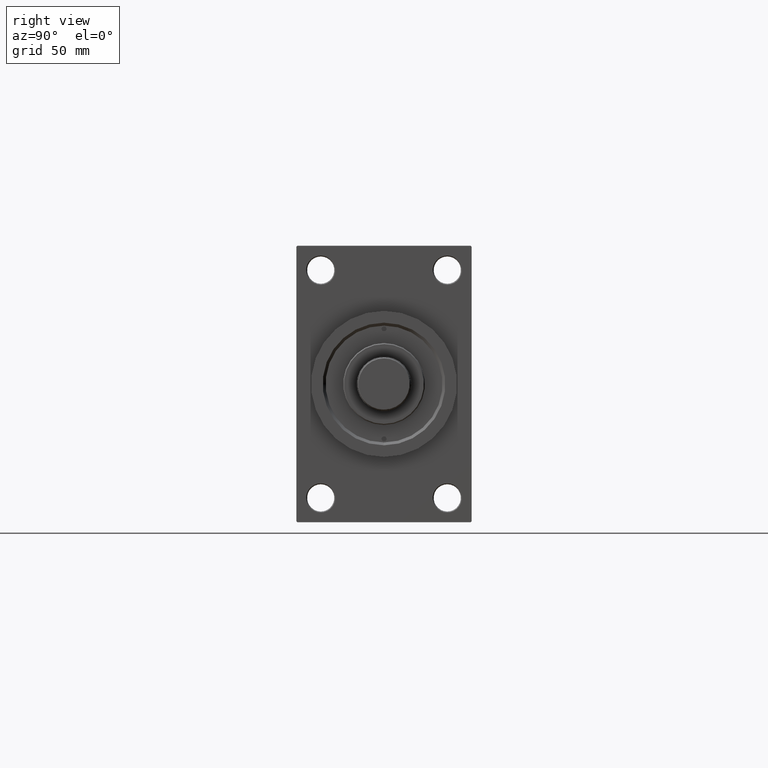
[diagram: clean part render]
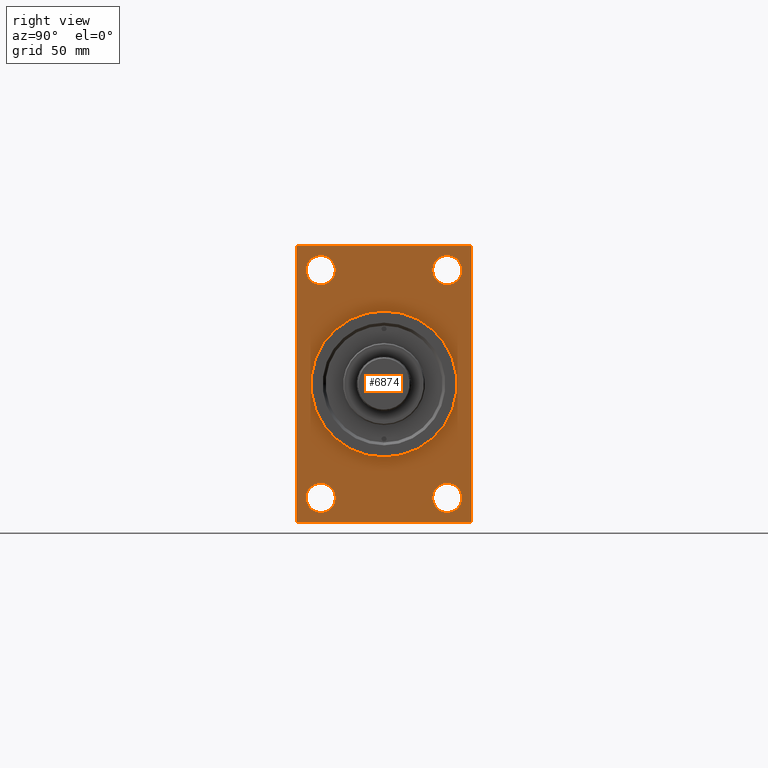
[diagram: same view with one face highlighted and labeled with its STEP entity id]
A machine part, right view. The second image highlights one B-rep face of the part: STEP entity #6874.
In plain terms, the highlighted planar face has unit normal (-1, 0, 0).
Its self-contained STEP definition (entity closure, byte-faithful):
#266 = CARTESIAN_POINT ( 'NONE',  ( 245.0000000000000000, -44.50000000000000000, -71.00000000000000000 ) ) ;
#459 = CARTESIAN_POINT ( 'NONE',  ( 245.0000000000000000, 0.000000000000000000, 0.000000000000000000 ) ) ;
#619 = CARTESIAN_POINT ( 'NONE',  ( 245.0000000000000000, 0.000000000000000000, 37.50000000000000711 ) ) ;
#1104 = EDGE_LOOP ( 'NONE', ( #45140, #35054 ) ) ;
#1163 = DIRECTION ( 'NONE',  ( 0.000000000000000000, 0.000000000000000000, -1.000000000000000000 ) ) ;
#1243 = CARTESIAN_POINT ( 'NONE',  ( 245.0000000000000000, 32.50000000000000711, -51.00000000000001421 ) ) ;
#1296 = CARTESIAN_POINT ( 'NONE',  ( 245.0000000000000000, 44.50000000000007105, 71.00000000000000000 ) ) ;
#1340 = ORIENTED_EDGE ( 'NONE', *, *, #22628, .T. ) ;
#1441 = DIRECTION ( 'NONE',  ( 0.000000000000000000, 0.000000000000000000, 1.000000000000000000 ) ) ;
#1787 = DIRECTION ( 'NONE',  ( -0.000000000000000000, 0.7071067811865376918, 0.7071067811865573427 ) ) ;
#2099 = CIRCLE ( 'NONE', #9083, 7.499999999999965361 ) ;
#2715 = DIRECTION ( 'NONE',  ( -1.000000000000000000, 0.000000000000000000, -0.000000000000000000 ) ) ;
#2858 = LINE ( 'NONE', #43998, #29267 ) ;
#2972 = ORIENTED_EDGE ( 'NONE', *, *, #38871, .T. ) ;
#3017 = EDGE_LOOP ( 'NONE', ( #37402, #18593, #14392, #2972, #21710, #21585, #1340, #8573 ) ) ;
#3870 = EDGE_CURVE ( 'NONE', #13201, #35908, #31778, .T. ) ;
#4097 = DIRECTION ( 'NONE',  ( 0.000000000000000000, 0.000000000000000000, -1.000000000000000000 ) ) ;
#4405 = CIRCLE ( 'NONE', #25247, 37.50000000000000711 ) ;
#5025 = CARTESIAN_POINT ( 'NONE',  ( 245.0000000000000000, -32.50000000000000000, 58.50000000000000711 ) ) ;
#5167 = DIRECTION ( 'NONE',  ( 0.000000000000000000, -0.7071067811865474617, 0.7071067811865474617 ) ) ;
#5372 = CIRCLE ( 'NONE', #32424, 7.499999999999965361 ) ;
#5923 = AXIS2_PLACEMENT_3D ( 'NONE', #459, #44768, #4097 ) ;
#6472 = DIRECTION ( 'NONE',  ( -1.000000000000000000, 0.000000000000000000, -0.000000000000000000 ) ) ;
#6713 = FACE_OUTER_BOUND ( 'NONE', #3017, .T. ) ;
#6874 = ADVANCED_FACE ( 'NONE', ( #31915, #24641, #28036, #13288, #21241, #6713 ), #46436, .F. ) ;
#7231 = EDGE_CURVE ( 'NONE', #27788, #44356, #17274, .T. ) ;
#7400 = DIRECTION ( 'NONE',  ( 0.000000000000000000, 0.000000000000000000, 1.000000000000000000 ) ) ;
#7838 = CARTESIAN_POINT ( 'NONE',  ( 245.0000000000000000, -44.99999999999997158, 70.50000000000000000 ) ) ;
#8573 = ORIENTED_EDGE ( 'NONE', *, *, #25481, .T. ) ;
#8783 = AXIS2_PLACEMENT_3D ( 'NONE', #28454, #23883, #39360 ) ;
#9083 = AXIS2_PLACEMENT_3D ( 'NONE', #35653, #43618, #32027 ) ;
#9772 = DIRECTION ( 'NONE',  ( -1.000000000000000000, 0.000000000000000000, -0.000000000000000000 ) ) ;
#9902 = CARTESIAN_POINT ( 'NONE',  ( 245.0000000000000000, 45.00000000000002132, 70.50000000000004263 ) ) ;
#10764 = VERTEX_POINT ( 'NONE', #42271 ) ;
#11027 = CARTESIAN_POINT ( 'NONE',  ( 245.0000000000000000, 32.50000000000000711, 58.50000000000000711 ) ) ;
#11123 = CIRCLE ( 'NONE', #38964, 7.499999999999985789 ) ;
#11417 = VERTEX_POINT ( 'NONE', #39938 ) ;
#11573 = CARTESIAN_POINT ( 'NONE',  ( 245.0000000000000000, 44.50000000000006395, -70.99999999999998579 ) ) ;
#11818 = LINE ( 'NONE', #44736, #28511 ) ;
#12310 = CARTESIAN_POINT ( 'NONE',  ( 245.0000000000000000, -32.50000000000000000, 65.99999999999997158 ) ) ;
#12348 = VERTEX_POINT ( 'NONE', #11573 ) ;
#12781 = EDGE_LOOP ( 'NONE', ( #21647, #43430 ) ) ;
#13201 = VERTEX_POINT ( 'NONE', #9902 ) ;
#13288 = FACE_BOUND ( 'NONE', #42501, .T. ) ;
#13630 = CARTESIAN_POINT ( 'NONE',  ( 245.0000000000000000, 32.50000000000000711, -58.50000000000000000 ) ) ;
#13647 = ORIENTED_EDGE ( 'NONE', *, *, #24715, .T. ) ;
#13984 = CARTESIAN_POINT ( 'NONE',  ( 245.0000000000000000, 0.000000000000000000, 0.000000000000000000 ) ) ;
#14392 = ORIENTED_EDGE ( 'NONE', *, *, #35731, .F. ) ;
#14689 = EDGE_CURVE ( 'NONE', #44356, #27788, #27564, .T. ) ;
#14910 = EDGE_CURVE ( 'NONE', #23104, #40944, #42293, .T. ) ;
#15512 = EDGE_CURVE ( 'NONE', #19950, #41993, #2099, .T. ) ;
#16112 = CARTESIAN_POINT ( 'NONE',  ( 245.0000000000000000, -32.50000000000000000, -58.49999999999999289 ) ) ;
#16689 = DIRECTION ( 'NONE',  ( -0.000000000000000000, 0.000000000000000000, 1.000000000000000000 ) ) ;
#16786 = DIRECTION ( 'NONE',  ( -1.000000000000000000, 0.000000000000000000, -0.000000000000000000 ) ) ;
#17274 = CIRCLE ( 'NONE', #8783, 7.499999999999978684 ) ;
#17345 = CARTESIAN_POINT ( 'NONE',  ( 245.0000000000000000, 45.00000000000001421, -70.99999999999998579 ) ) ;
#18253 = LINE ( 'NONE', #7838, #37874 ) ;
#18424 = LINE ( 'NONE', #266, #38010 ) ;
#18593 = ORIENTED_EDGE ( 'NONE', *, *, #29431, .T. ) ;
#18836 = CARTESIAN_POINT ( 'NONE',  ( 245.0000000000000000, 32.50000000000000711, 65.99999999999997158 ) ) ;
#19130 = CIRCLE ( 'NONE', #46183, 7.499999999999965361 ) ;
#19409 = VERTEX_POINT ( 'NONE', #22519 ) ;
#19475 = VERTEX_POINT ( 'NONE', #40735 ) ;
#19950 = VERTEX_POINT ( 'NONE', #18836 ) ;
#20058 = EDGE_CURVE ( 'NONE', #44401, #23727, #33829, .T. ) ;
#20266 = VECTOR ( 'NONE', #32344, 1000.000000000000000 ) ;
#21241 = FACE_BOUND ( 'NONE', #39862, .T. ) ;
#21585 = ORIENTED_EDGE ( 'NONE', *, *, #3870, .T. ) ;
#21647 = ORIENTED_EDGE ( 'NONE', *, *, #7231, .T. ) ;
#21684 = DIRECTION ( 'NONE',  ( -1.000000000000000000, 0.000000000000000000, -0.000000000000000000 ) ) ;
#21710 = ORIENTED_EDGE ( 'NONE', *, *, #22911, .F. ) ;
#21860 = VERTEX_POINT ( 'NONE', #29981 ) ;
#22221 = AXIS2_PLACEMENT_3D ( 'NONE', #5025, #9772, #45464 ) ;
#22519 = CARTESIAN_POINT ( 'NONE',  ( 245.0000000000000000, -44.49999999999995026, 70.99999999999998579 ) ) ;
#22628 = EDGE_CURVE ( 'NONE', #35908, #19409, #33409, .T. ) ;
#22845 = ORIENTED_EDGE ( 'NONE', *, *, #15512, .T. ) ;
#22868 = ORIENTED_EDGE ( 'NONE', *, *, #20058, .T. ) ;
#22911 = EDGE_CURVE ( 'NONE', #13201, #10764, #2858, .T. ) ;
#23040 = CARTESIAN_POINT ( 'NONE',  ( 245.0000000000000000, -32.50000000000000000, 51.00000000000004263 ) ) ;
#23104 = VERTEX_POINT ( 'NONE', #619 ) ;
#23463 = AXIS2_PLACEMENT_3D ( 'NONE', #13984, #6472, #16689 ) ;
#23697 = EDGE_CURVE ( 'NONE', #19475, #44256, #11818, .T. ) ;
#23727 = VERTEX_POINT ( 'NONE', #12310 ) ;
#23883 = DIRECTION ( 'NONE',  ( -1.000000000000000000, 0.000000000000000000, -0.000000000000000000 ) ) ;
#24061 = DIRECTION ( 'NONE',  ( -1.000000000000000000, 0.000000000000000000, -0.000000000000000000 ) ) ;
#24127 = LINE ( 'NONE', #17345, #20266 ) ;
#24268 = DIRECTION ( 'NONE',  ( 0.000000000000000000, 0.000000000000000000, 1.000000000000000000 ) ) ;
#24641 = FACE_BOUND ( 'NONE', #1104, .T. ) ;
#24715 = EDGE_CURVE ( 'NONE', #41993, #19950, #5372, .T. ) ;
#24841 = AXIS2_PLACEMENT_3D ( 'NONE', #27671, #16786, #24268 ) ;
#25247 = AXIS2_PLACEMENT_3D ( 'NONE', #47201, #43801, #36786 ) ;
#25481 = EDGE_CURVE ( 'NONE', #19409, #19475, #18253, .T. ) ;
#25644 = VECTOR ( 'NONE', #5167, 1000.000000000000114 ) ;
#25682 = CARTESIAN_POINT ( 'NONE',  ( 245.0000000000000000, -44.99999999999997158, -70.50000000000000000 ) ) ;
#27213 = DIRECTION ( 'NONE',  ( 0.000000000000000000, 0.000000000000000000, 1.000000000000000000 ) ) ;
#27564 = CIRCLE ( 'NONE', #39178, 7.499999999999978684 ) ;
#27671 = CARTESIAN_POINT ( 'NONE',  ( 245.0000000000000000, -32.50000000000000000, -58.49999999999999289 ) ) ;
#27788 = VERTEX_POINT ( 'NONE', #29337 ) ;
#28036 = FACE_BOUND ( 'NONE', #12781, .T. ) ;
#28179 = EDGE_LOOP ( 'NONE', ( #22868, #40776 ) ) ;
#28454 = CARTESIAN_POINT ( 'NONE',  ( 245.0000000000000000, 32.50000000000000711, -58.50000000000000000 ) ) ;
#28511 = VECTOR ( 'NONE', #1163, 1000.000000000000000 ) ;
#29267 = VECTOR ( 'NONE', #33107, 1000.000000000000000 ) ;
#29328 = EDGE_CURVE ( 'NONE', #11417, #46439, #45740, .T. ) ;
#29337 = CARTESIAN_POINT ( 'NONE',  ( 245.0000000000000000, 32.50000000000000711, -65.99999999999997158 ) ) ;
#29431 = EDGE_CURVE ( 'NONE', #44256, #21860, #18424, .T. ) ;
#29981 = CARTESIAN_POINT ( 'NONE',  ( 245.0000000000000000, -44.49999999999997158, -71.00000000000000000 ) ) ;
#30031 = CARTESIAN_POINT ( 'NONE',  ( 245.0000000000000000, 4.592425496802575156E-15, -37.50000000000000711 ) ) ;
#30050 = DIRECTION ( 'NONE',  ( 0.000000000000000000, 0.7071067811865376918, -0.7071067811865573427 ) ) ;
#31778 = LINE ( 'NONE', #1296, #25644 ) ;
#31915 = FACE_BOUND ( 'NONE', #28179, .T. ) ;
#32027 = DIRECTION ( 'NONE',  ( 0.000000000000000000, 0.000000000000000000, 1.000000000000000000 ) ) ;
#32129 = ORIENTED_EDGE ( 'NONE', *, *, #14910, .F. ) ;
#32344 = DIRECTION ( 'NONE',  ( 0.000000000000000000, -1.000000000000000000, -1.541976423090495633E-16 ) ) ;
#32424 = AXIS2_PLACEMENT_3D ( 'NONE', #11027, #21684, #7400 ) ;
#32502 = CARTESIAN_POINT ( 'NONE',  ( 245.0000000000000000, -32.50000000000000000, -51.00000000000000711 ) ) ;
#33021 = DIRECTION ( 'NONE',  ( -0.000000000000000000, -0.7071067811865622277, -0.7071067811865328068 ) ) ;
#33107 = DIRECTION ( 'NONE',  ( 0.000000000000000000, -4.886545002751570165E-17, -1.000000000000000000 ) ) ;
#33409 = LINE ( 'NONE', #45028, #40892 ) ;
#33829 = CIRCLE ( 'NONE', #22221, 7.499999999999965361 ) ;
#34625 = DIRECTION ( 'NONE',  ( -1.000000000000000000, 0.000000000000000000, -0.000000000000000000 ) ) ;
#34960 = LINE ( 'NONE', #42220, #38929 ) ;
#35054 = ORIENTED_EDGE ( 'NONE', *, *, #39762, .T. ) ;
#35653 = CARTESIAN_POINT ( 'NONE',  ( 245.0000000000000000, 32.50000000000000711, 58.50000000000000711 ) ) ;
#35731 = EDGE_CURVE ( 'NONE', #12348, #21860, #24127, .T. ) ;
#35908 = VERTEX_POINT ( 'NONE', #43177 ) ;
#36786 = DIRECTION ( 'NONE',  ( 0.000000000000000000, 0.000000000000000000, -1.000000000000000000 ) ) ;
#37402 = ORIENTED_EDGE ( 'NONE', *, *, #23697, .T. ) ;
#37874 = VECTOR ( 'NONE', #33021, 1000.000000000000000 ) ;
#38010 = VECTOR ( 'NONE', #30050, 1000.000000000000114 ) ;
#38249 = CARTESIAN_POINT ( 'NONE',  ( 245.0000000000000000, -32.50000000000000000, 58.50000000000000711 ) ) ;
#38871 = EDGE_CURVE ( 'NONE', #12348, #10764, #34960, .T. ) ;
#38929 = VECTOR ( 'NONE', #1787, 1000.000000000000114 ) ;
#38964 = AXIS2_PLACEMENT_3D ( 'NONE', #16112, #24061, #27213 ) ;
#39178 = AXIS2_PLACEMENT_3D ( 'NONE', #13630, #2715, #43151 ) ;
#39360 = DIRECTION ( 'NONE',  ( 0.000000000000000000, 0.000000000000000000, 1.000000000000000000 ) ) ;
#39762 = EDGE_CURVE ( 'NONE', #46439, #11417, #11123, .T. ) ;
#39862 = EDGE_LOOP ( 'NONE', ( #32129, #47495 ) ) ;
#39938 = CARTESIAN_POINT ( 'NONE',  ( 245.0000000000000000, -32.50000000000000000, -65.99999999999995737 ) ) ;
#40735 = CARTESIAN_POINT ( 'NONE',  ( 245.0000000000000000, -44.99999999999997158, 70.50000000000000000 ) ) ;
#40776 = ORIENTED_EDGE ( 'NONE', *, *, #47143, .T. ) ;
#40892 = VECTOR ( 'NONE', #40915, 1000.000000000000000 ) ;
#40915 = DIRECTION ( 'NONE',  ( 0.000000000000000000, -1.000000000000000000, -1.541976423090495387E-16 ) ) ;
#40944 = VERTEX_POINT ( 'NONE', #30031 ) ;
#41993 = VERTEX_POINT ( 'NONE', #46212 ) ;
#42220 = CARTESIAN_POINT ( 'NONE',  ( 245.0000000000000000, 45.00000000000001421, -70.50000000000001421 ) ) ;
#42271 = CARTESIAN_POINT ( 'NONE',  ( 245.0000000000000000, 45.00000000000001421, -70.50000000000001421 ) ) ;
#42293 = CIRCLE ( 'NONE', #5923, 37.50000000000000711 ) ;
#42501 = EDGE_LOOP ( 'NONE', ( #13647, #22845 ) ) ;
#43151 = DIRECTION ( 'NONE',  ( 0.000000000000000000, 0.000000000000000000, 1.000000000000000000 ) ) ;
#43177 = CARTESIAN_POINT ( 'NONE',  ( 245.0000000000000000, 44.50000000000007105, 71.00000000000000000 ) ) ;
#43430 = ORIENTED_EDGE ( 'NONE', *, *, #14689, .T. ) ;
#43618 = DIRECTION ( 'NONE',  ( -1.000000000000000000, 0.000000000000000000, -0.000000000000000000 ) ) ;
#43801 = DIRECTION ( 'NONE',  ( 1.000000000000000000, 0.000000000000000000, 0.000000000000000000 ) ) ;
#43998 = CARTESIAN_POINT ( 'NONE',  ( 245.0000000000000000, 45.00000000000002132, 71.00000000000000000 ) ) ;
#44256 = VERTEX_POINT ( 'NONE', #25682 ) ;
#44356 = VERTEX_POINT ( 'NONE', #1243 ) ;
#44401 = VERTEX_POINT ( 'NONE', #23040 ) ;
#44736 = CARTESIAN_POINT ( 'NONE',  ( 245.0000000000000000, -44.99999999999997158, 70.99999999999998579 ) ) ;
#44768 = DIRECTION ( 'NONE',  ( 1.000000000000000000, 0.000000000000000000, 0.000000000000000000 ) ) ;
#45028 = CARTESIAN_POINT ( 'NONE',  ( 245.0000000000000000, 45.00000000000002132, 71.00000000000000000 ) ) ;
#45140 = ORIENTED_EDGE ( 'NONE', *, *, #29328, .T. ) ;
#45464 = DIRECTION ( 'NONE',  ( 0.000000000000000000, 0.000000000000000000, 1.000000000000000000 ) ) ;
#45536 = EDGE_CURVE ( 'NONE', #40944, #23104, #4405, .T. ) ;
#45740 = CIRCLE ( 'NONE', #24841, 7.499999999999985789 ) ;
#46183 = AXIS2_PLACEMENT_3D ( 'NONE', #38249, #34625, #1441 ) ;
#46212 = CARTESIAN_POINT ( 'NONE',  ( 245.0000000000000000, 32.50000000000000711, 51.00000000000004263 ) ) ;
#46436 = PLANE ( 'NONE',  #23463 ) ;
#46439 = VERTEX_POINT ( 'NONE', #32502 ) ;
#47143 = EDGE_CURVE ( 'NONE', #23727, #44401, #19130, .T. ) ;
#47201 = CARTESIAN_POINT ( 'NONE',  ( 245.0000000000000000, 0.000000000000000000, 0.000000000000000000 ) ) ;
#47495 = ORIENTED_EDGE ( 'NONE', *, *, #45536, .F. ) ;